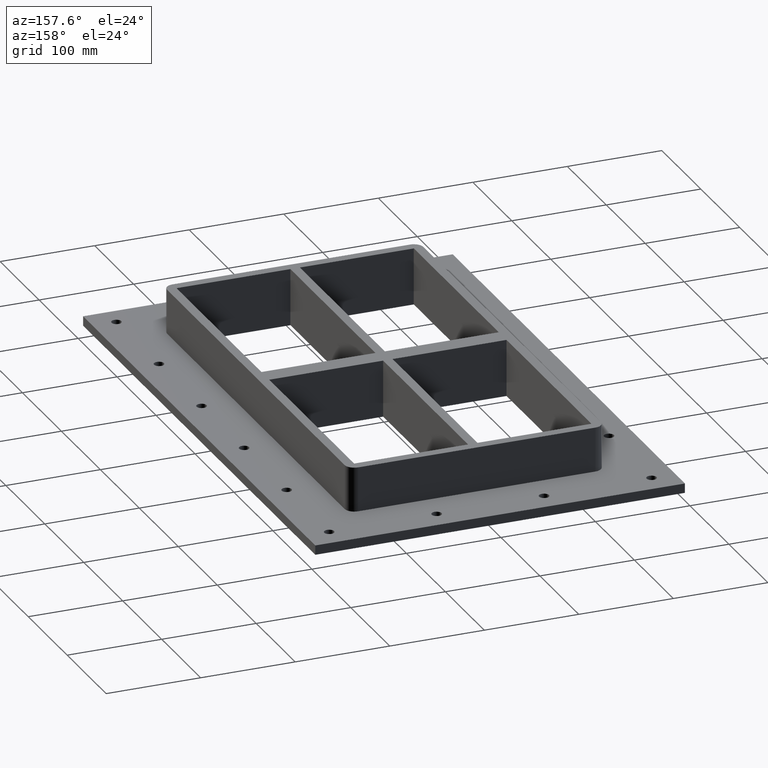
[diagram: clean part render]
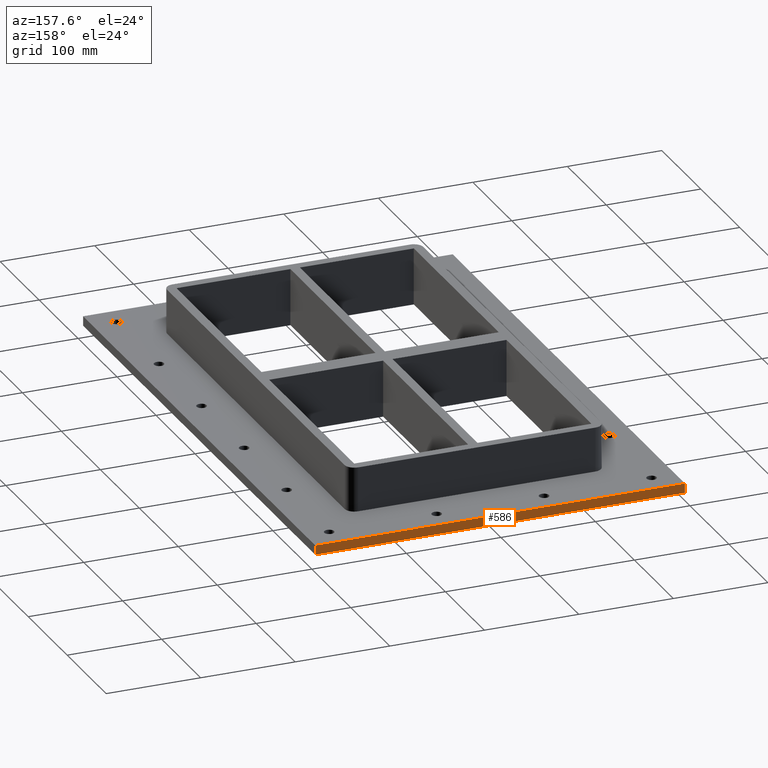
[diagram: same view with one face highlighted and labeled with its STEP entity id]
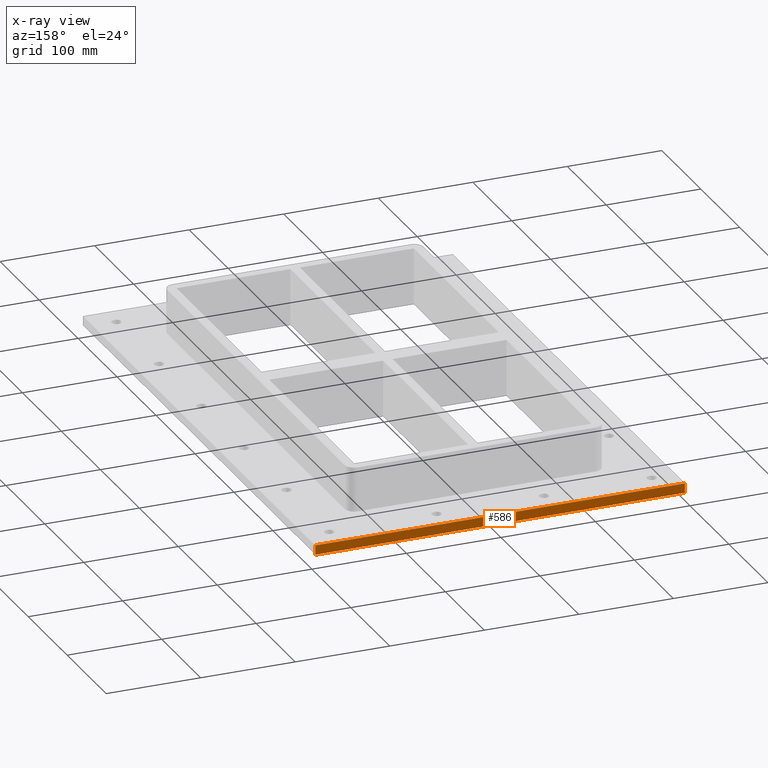
[diagram: x-ray of the same camera — body ghosted, the highlighted face saturated]
A machine part, auxiliary view. The second image highlights one B-rep face of the part: STEP entity #586.
The next image is the same camera in x-ray: the body ghosted, the highlighted face saturated — about 0% of this face is hidden behind the body in this view.
In plain terms, the highlighted planar face has unit normal (0, 1, 0).
Its self-contained STEP definition (entity closure, byte-faithful):
#523=CARTESIAN_POINT('',(-195.50000000000009,298.0,-27.0));
#524=VERTEX_POINT('',#523);
#539=CARTESIAN_POINT('',(-195.50000000000006,297.99999999999994,-17.0));
#540=VERTEX_POINT('',#539);
#547=CARTESIAN_POINT('',(-195.50000000000009,298.0,-27.0));
#548=DIRECTION('',(0.0,0.0,1.0));
#549=VECTOR('',#548,10.0);
#550=LINE('',#547,#549);
#551=EDGE_CURVE('',#524,#540,#550,.T.);
#556=CARTESIAN_POINT('',(195.5,298.00000000000006,-27.0));
#557=DIRECTION('',(0.0,1.0,0.0));
#558=DIRECTION('',(-1.0,0.0,0.0));
#559=AXIS2_PLACEMENT_3D('',#556,#557,#558);
#560=PLANE('',#559);
#561=CARTESIAN_POINT('',(195.49999999999997,298.00000000000006,-27.0));
#562=VERTEX_POINT('',#561);
#563=CARTESIAN_POINT('',(-195.50000000000009,298.0,-27.0));
#564=DIRECTION('',(1.0,0.0,0.0));
#565=VECTOR('',#564,391.00000000000011);
#566=LINE('',#563,#565);
#567=EDGE_CURVE('',#524,#562,#566,.T.);
#568=ORIENTED_EDGE('',*,*,#567,.F.);
#569=ORIENTED_EDGE('',*,*,#551,.T.);
#570=CARTESIAN_POINT('',(195.49999999999997,298.00000000000006,-17.0));
#571=VERTEX_POINT('',#570);
#572=CARTESIAN_POINT('',(195.50000000000003,298.00000000000006,-17.0));
#573=DIRECTION('',(-1.0,0.0,0.0));
#574=VECTOR('',#573,391.00000000000011);
#575=LINE('',#572,#574);
#576=EDGE_CURVE('',#571,#540,#575,.T.);
#577=ORIENTED_EDGE('',*,*,#576,.F.);
#578=CARTESIAN_POINT('',(195.49999999999997,298.00000000000006,-27.0));
#579=DIRECTION('',(0.0,0.0,1.0));
#580=VECTOR('',#579,10.0);
#581=LINE('',#578,#580);
#582=EDGE_CURVE('',#562,#571,#581,.T.);
#583=ORIENTED_EDGE('',*,*,#582,.F.);
#584=EDGE_LOOP('',(#568,#569,#577,#583));
#585=FACE_OUTER_BOUND('',#584,.T.);
#586=ADVANCED_FACE('',(#585),#560,.T.);